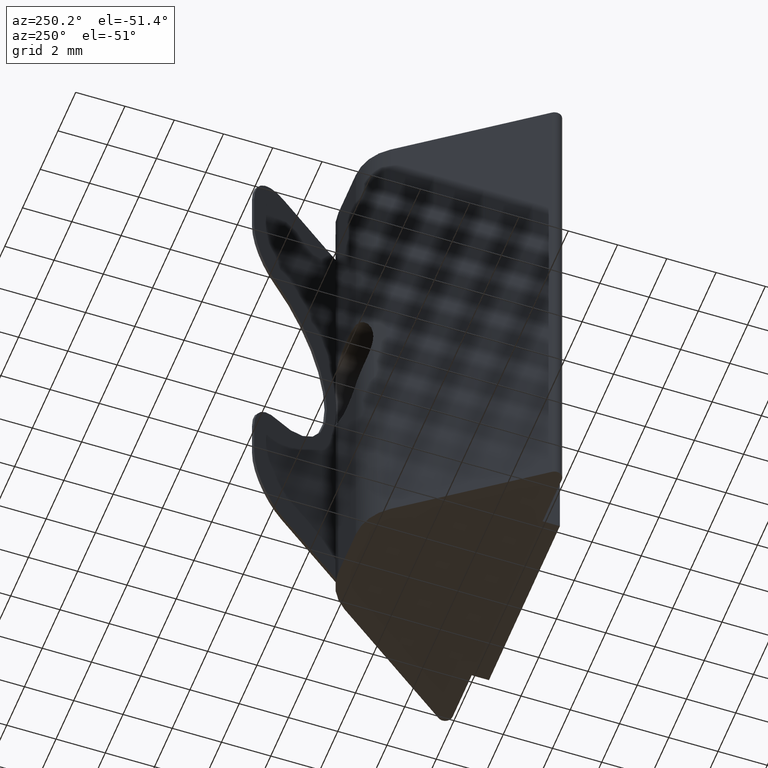
[diagram: clean part render]
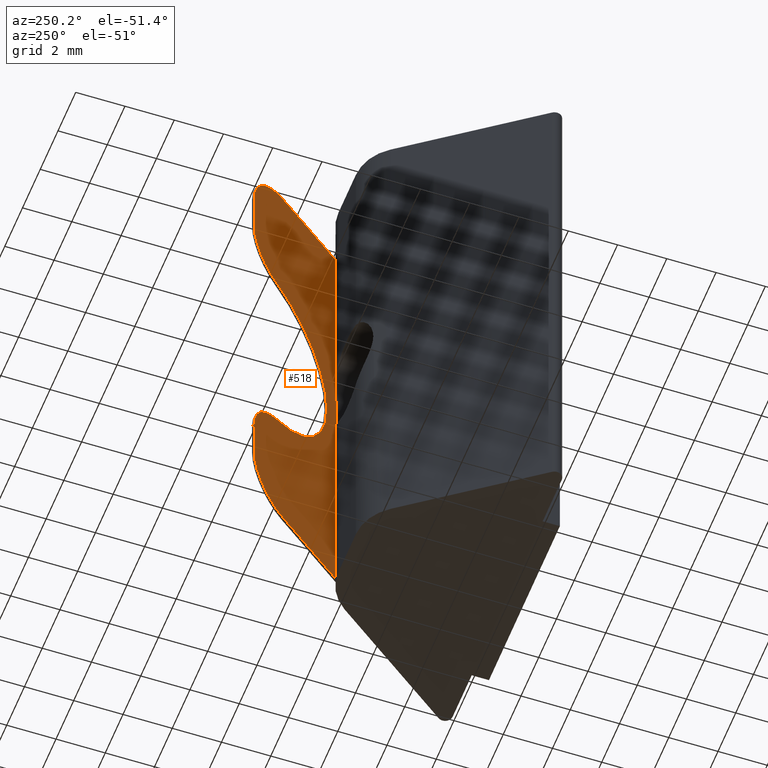
[diagram: same view with one face highlighted and labeled with its STEP entity id]
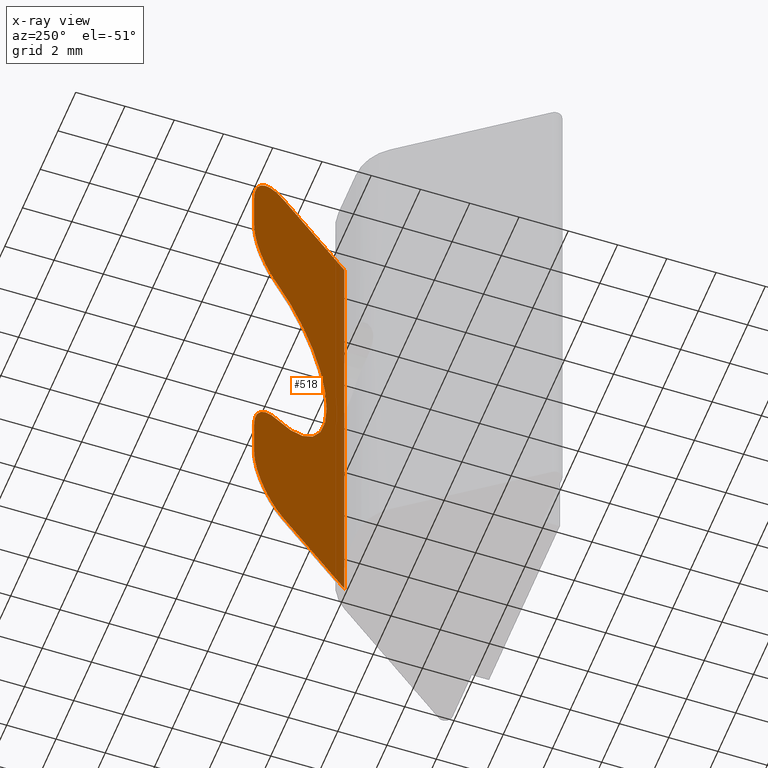
[diagram: x-ray of the same camera — body ghosted, the highlighted face saturated]
A machine part, auxiliary view. The second image highlights one B-rep face of the part: STEP entity #518.
The next image is the same camera in x-ray: the body ghosted, the highlighted face saturated — about 5% of this face is hidden behind the body in this view.
In plain terms, the highlighted planar face has unit normal (0.8074, 0.59, -0).
Its self-contained STEP definition (entity closure, byte-faithful):
#20=PLANE('',#550);
#39=FACE_OUTER_BOUND('',#67,.T.);
#67=EDGE_LOOP('',(#360,#361,#362,#363,#364,#365,#366,#367,#368,#369));
#97=LINE('',#761,#151);
#100=LINE('',#767,#154);
#101=LINE('',#769,#155);
#102=LINE('',#771,#156);
#103=LINE('',#775,#157);
#151=VECTOR('',#607,1.63669483830555);
#154=VECTOR('',#612,4.14756660525515);
#155=VECTOR('',#613,19.5);
#156=VECTOR('',#614,4.14756660525515);
#157=VECTOR('',#617,1.63669483830556);
#204=CIRCLE('',#548,2.);
#205=CIRCLE('',#551,2.);
#206=CIRCLE('',#552,2.);
#207=CIRCLE('',#553,4.25);
#208=CIRCLE('',#554,2.);
#226=VERTEX_POINT('',#754);
#227=VERTEX_POINT('',#756);
#228=VERTEX_POINT('',#760);
#230=VERTEX_POINT('',#766);
#231=VERTEX_POINT('',#768);
#232=VERTEX_POINT('',#770);
#233=VERTEX_POINT('',#772);
#234=VERTEX_POINT('',#774);
#235=VERTEX_POINT('',#776);
#236=VERTEX_POINT('',#778);
#277=EDGE_CURVE('',#226,#227,#204,.T.);
#279=EDGE_CURVE('',#228,#227,#97,.T.);
#282=EDGE_CURVE('',#226,#230,#100,.T.);
#283=EDGE_CURVE('',#231,#230,#101,.T.);
#284=EDGE_CURVE('',#231,#232,#102,.T.);
#285=EDGE_CURVE('',#233,#232,#205,.T.);
#286=EDGE_CURVE('',#233,#234,#103,.T.);
#287=EDGE_CURVE('',#235,#234,#206,.T.);
#288=EDGE_CURVE('',#235,#236,#207,.T.);
#289=EDGE_CURVE('',#228,#236,#208,.T.);
#360=ORIENTED_EDGE('',*,*,#277,.F.);
#361=ORIENTED_EDGE('',*,*,#282,.T.);
#362=ORIENTED_EDGE('',*,*,#283,.F.);
#363=ORIENTED_EDGE('',*,*,#284,.T.);
#364=ORIENTED_EDGE('',*,*,#285,.F.);
#365=ORIENTED_EDGE('',*,*,#286,.T.);
#366=ORIENTED_EDGE('',*,*,#287,.F.);
#367=ORIENTED_EDGE('',*,*,#288,.T.);
#368=ORIENTED_EDGE('',*,*,#289,.F.);
#369=ORIENTED_EDGE('',*,*,#279,.T.);
#518=ADVANCED_FACE('',(#39),#20,.F.);
#548=AXIS2_PLACEMENT_3D('',#757,#602,#603);
#550=AXIS2_PLACEMENT_3D('',#765,#610,#611);
#551=AXIS2_PLACEMENT_3D('',#773,#615,#616);
#552=AXIS2_PLACEMENT_3D('',#777,#618,#619);
#553=AXIS2_PLACEMENT_3D('',#779,#620,#621);
#554=AXIS2_PLACEMENT_3D('',#780,#622,#623);
#602=DIRECTION('center_axis',(0.807391122257898,0.59001658934231,-2.29359244537343E-18));
#603=DIRECTION('ref_axis',(-0.417204731336507,0.570911737618376,-0.707106781186547));
#607=DIRECTION('',(-3.57300001308348E-16,4.88936843895634E-16,-1.));
#610=DIRECTION('center_axis',(0.807391122257898,0.59001658934231,-2.29359244537343E-18));
#611=DIRECTION('ref_axis',(0.,0.,-1.));
#612=DIRECTION('',(0.59001658934231,-0.807391122257898,0.));
#613=DIRECTION('',(0.,0.,-1.));
#614=DIRECTION('',(-0.59001658934231,0.807391122257898,2.66453525910038E-16));
#615=DIRECTION('center_axis',(0.807391122257898,0.59001658934231,-2.29359244537343E-18));
#616=DIRECTION('ref_axis',(-0.417204731336507,0.570911737618376,0.707106781186547));
#617=DIRECTION('',(-2.38200000872232E-16,3.25957895930423E-16,-1.));
#618=DIRECTION('center_axis',(0.807391122257898,0.59001658934231,-2.29359244537343E-18));
#619=DIRECTION('ref_axis',(0.590016589342312,-0.807391122257897,0.));
#620=DIRECTION('center_axis',(0.807391122257898,0.59001658934231,0.));
#621=DIRECTION('ref_axis',(0.,0.,1.));
#622=DIRECTION('center_axis',(0.807391122257898,0.59001658934231,-2.29359244537343E-18));
#623=DIRECTION('ref_axis',(0.590016589342312,-0.807391122257897,-5.55111512312579E-16));
#754=CARTESIAN_POINT('',(0.152073420766226,9.02874163474096,1.25));
#756=CARTESIAN_POINT('',(-1.02795975791839,10.6435238792568,3.25));
#757=CARTESIAN_POINT('Origin',(0.152073420766219,9.02874163474095,3.25));
#760=CARTESIAN_POINT('',(-1.02795975791839,10.6435238792567,4.88669483830555));
#761=CARTESIAN_POINT('',(-1.02795975791839,10.6435238792567,6.75));
#765=CARTESIAN_POINT('Origin',(2.80409340434374,5.39966165721383,11.));
#766=CARTESIAN_POINT('',(2.59920652326893,5.68003317868462,1.25));
#767=CARTESIAN_POINT('',(-1.02795975791839,10.6435238792568,1.25));
#768=CARTESIAN_POINT('',(2.59920652326893,5.68003317868462,20.75));
#769=CARTESIAN_POINT('',(2.59920652326893,5.68003317868462,0.));
#770=CARTESIAN_POINT('',(0.152073420766228,9.02874163474095,20.75));
#771=CARTESIAN_POINT('',(6.34724760886048,0.551134851033024,20.75));
#772=CARTESIAN_POINT('',(-1.02795975791839,10.6435238792567,18.75));
#773=CARTESIAN_POINT('Origin',(0.15207342076622,9.02874163474095,18.75));
#774=CARTESIAN_POINT('',(-1.02795975791839,10.6435238792567,17.1133051616944));
#775=CARTESIAN_POINT('',(-1.02795975791839,10.6435238792567,20.75));
#776=CARTESIAN_POINT('',(-0.0933734804001737,9.36461634160024,15.1570475099522));
#777=CARTESIAN_POINT('Origin',(0.15207342076622,9.02874163474095,17.1133051616944));
#778=CARTESIAN_POINT('',(-0.0933734804001755,9.36461634160024,6.84295249004777));
#779=CARTESIAN_POINT('Origin',(-0.614948145378778,10.0783500936762,11.));
#780=CARTESIAN_POINT('Origin',(0.152073420766219,9.02874163474095,4.88669483830555));